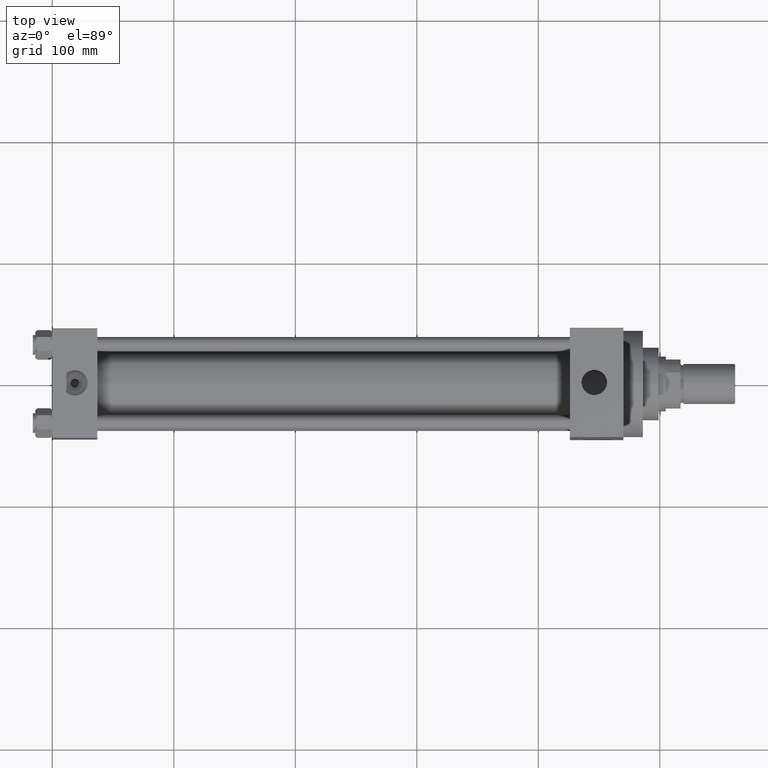
[diagram: clean part render]
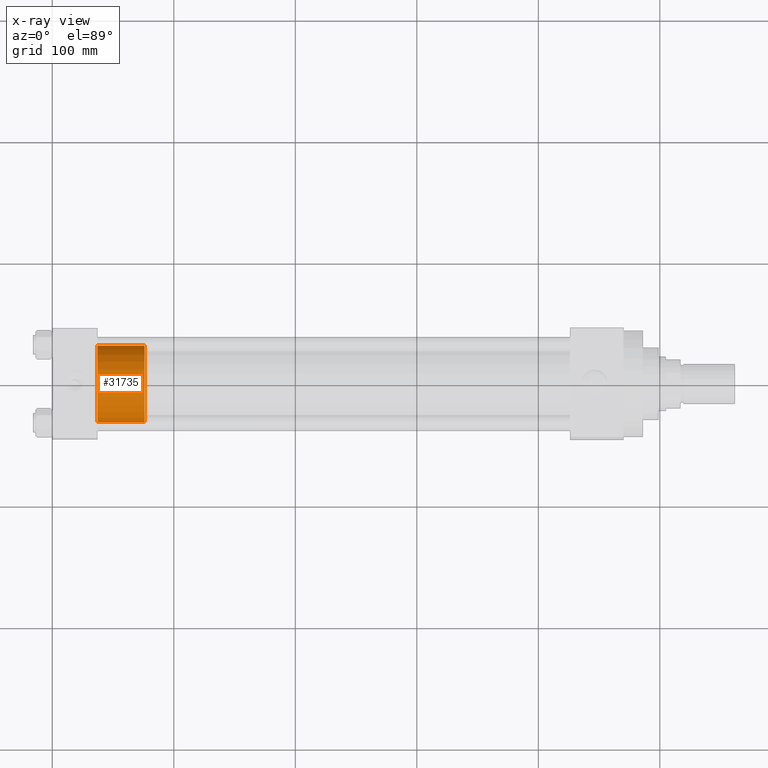
[diagram: x-ray — body ghosted, one internal face saturated and labeled with its STEP entity id]
A machine part, top view, then the same camera in x-ray: the body is ghosted and one INTERNAL B-rep face — a face not visible from any outside direction — is saturated and labeled: STEP entity #31735.
In plain terms, the highlighted cylindrical surface (partial cylindrical patch) has radius 31.5 mm, axis along (-1, 0, 0).
Its self-contained STEP definition (entity closure, byte-faithful):
#345 = ORIENTED_EDGE ( 'NONE', *, *, #40447, .T. ) ;
#3210 = DIRECTION ( 'NONE',  ( -0.000000000000000000, -0.000000000000000000, -1.000000000000000000 ) ) ;
#4108 = VECTOR ( 'NONE', #3210, 1000.000000000000000 ) ;
#6698 = ORIENTED_EDGE ( 'NONE', *, *, #6893, .T. ) ;
#6893 = EDGE_CURVE ( 'NONE', #20689, #36118, #10209, .T. ) ;
#10209 = LINE ( 'NONE', #29217, #4108 ) ;
#10223 = CARTESIAN_POINT ( 'NONE',  ( 0.000000000000000000, 0.000000000000000000, 39.00000000000000000 ) ) ;
#11121 = VERTEX_POINT ( 'NONE', #13357 ) ;
#11873 = DIRECTION ( 'NONE',  ( 0.000000000000000000, 0.000000000000000000, 1.000000000000000000 ) ) ;
#12070 = DIRECTION ( 'NONE',  ( -1.000000000000000000, 0.000000000000000000, 0.000000000000000000 ) ) ;
#13357 = CARTESIAN_POINT ( 'NONE',  ( 31.50000000000000000, 3.857637417314162689E-15, 0.000000000000000000 ) ) ;
#15061 = AXIS2_PLACEMENT_3D ( 'NONE', #34849, #38226, #16295 ) ;
#16113 = ORIENTED_EDGE ( 'NONE', *, *, #35784, .F. ) ;
#16295 = DIRECTION ( 'NONE',  ( 1.000000000000000000, 0.000000000000000000, 0.000000000000000000 ) ) ;
#18358 = CARTESIAN_POINT ( 'NONE',  ( -31.50000000000000000, 0.000000000000000000, 39.00000000000000000 ) ) ;
#18919 = VERTEX_POINT ( 'NONE', #44232 ) ;
#19364 = AXIS2_PLACEMENT_3D ( 'NONE', #10223, #11873, #29948 ) ;
#20689 = VERTEX_POINT ( 'NONE', #18358 ) ;
#20899 = CIRCLE ( 'NONE', #19364, 31.50000000000000000 ) ;
#21628 = AXIS2_PLACEMENT_3D ( 'NONE', #30134, #45067, #12070 ) ;
#22124 = VECTOR ( 'NONE', #39136, 1000.000000000000000 ) ;
#22434 = EDGE_CURVE ( 'NONE', #18919, #11121, #24659, .T. ) ;
#24322 = EDGE_LOOP ( 'NONE', ( #31668, #16113, #6698, #345 ) ) ;
#24659 = LINE ( 'NONE', #46360, #22124 ) ;
#29217 = CARTESIAN_POINT ( 'NONE',  ( -31.50000000000000000, 0.000000000000000000, 39.00000000000000000 ) ) ;
#29649 = FACE_OUTER_BOUND ( 'NONE', #24322, .T. ) ;
#29948 = DIRECTION ( 'NONE',  ( 1.000000000000000000, 0.000000000000000000, 0.000000000000000000 ) ) ;
#30134 = CARTESIAN_POINT ( 'NONE',  ( 0.000000000000000000, 0.000000000000000000, 39.00000000000000000 ) ) ;
#31204 = CIRCLE ( 'NONE', #15061, 31.50000000000000000 ) ;
#31668 = ORIENTED_EDGE ( 'NONE', *, *, #22434, .F. ) ;
#31735 = ADVANCED_FACE ( 'NONE', ( #29649 ), #33036, .T. ) ;
#32489 = CARTESIAN_POINT ( 'NONE',  ( -31.50000000000000000, 0.000000000000000000, 0.000000000000000000 ) ) ;
#33036 = CYLINDRICAL_SURFACE ( 'NONE', #21628, 31.50000000000000000 ) ;
#34849 = CARTESIAN_POINT ( 'NONE',  ( 0.000000000000000000, 0.000000000000000000, 0.000000000000000000 ) ) ;
#35784 = EDGE_CURVE ( 'NONE', #20689, #18919, #20899, .T. ) ;
#36118 = VERTEX_POINT ( 'NONE', #32489 ) ;
#38226 = DIRECTION ( 'NONE',  ( 0.000000000000000000, 0.000000000000000000, 1.000000000000000000 ) ) ;
#39136 = DIRECTION ( 'NONE',  ( -0.000000000000000000, -0.000000000000000000, -1.000000000000000000 ) ) ;
#40447 = EDGE_CURVE ( 'NONE', #36118, #11121, #31204, .T. ) ;
#44232 = CARTESIAN_POINT ( 'NONE',  ( 31.50000000000000000, 3.857637417314162689E-15, 39.00000000000000000 ) ) ;
#45067 = DIRECTION ( 'NONE',  ( -0.000000000000000000, -0.000000000000000000, -1.000000000000000000 ) ) ;
#46360 = CARTESIAN_POINT ( 'NONE',  ( 31.50000000000000000, 3.857637417314162689E-15, 39.00000000000000000 ) ) ;